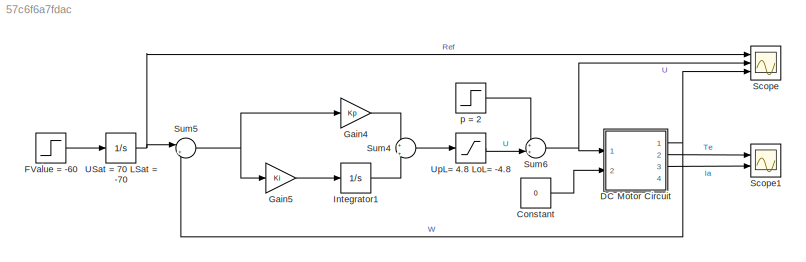
MODEL slx_57c6f6a7fdac
KIND model
CONFIG AbsTol = auto
CONFIG EnableMultiTasking = off
CONFIG FixedStep = auto
CONFIG MaxStep = auto
CONFIG MinStep = auto
CONFIG RelTol = 1e-3
CONFIG SampleTimeConstraint = Unconstrained
CONFIG SolverName = VariableStepAuto
CONFIG StartTime = 0.0
CONFIG StopTime = 6
BLOCK [Constant] Constant
  Value = 0
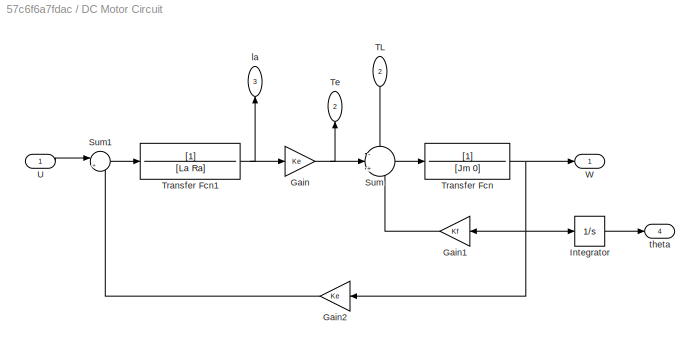
BLOCK [SubSystem] DC Motor Circuit
  Ports = [2, 4]
  RequestExecContextInheritance = off
BLOCK [Gain] DC Motor Circuit/Gain
  Gain = Ke
BLOCK [Gain] DC Motor Circuit/Gain1
  Gain = Kf
  NameLocation = top
BLOCK [Gain] DC Motor Circuit/Gain2
  Gain = Ke
  NameLocation = top
BLOCK [Integrator] DC Motor Circuit/Integrator
  Ports = [1, 1]
BLOCK [Sum] DC Motor Circuit/Sum
  Inputs = -|+|-
  Ports = [3, 1]
BLOCK [Sum] DC Motor Circuit/Sum1
  Inputs = |+-
  Ports = [2, 1]
BLOCK [Inport] DC Motor Circuit/TL
  NameLocation = left
  Port = 2
BLOCK [Outport] DC Motor Circuit/Te
  NameLocation = right
  Port = 2
BLOCK [TransferFcn] DC Motor Circuit/Transfer Fcn
  Denominator = [Jm 0]
BLOCK [TransferFcn] DC Motor Circuit/Transfer Fcn1
  Denominator = [La Ra]
BLOCK [Inport] DC Motor Circuit/U
BLOCK [Outport] DC Motor Circuit/W
BLOCK [Outport] DC Motor Circuit/la
  NameLocation = right
  Port = 3
BLOCK [Outport] DC Motor Circuit/theta
  Port = 4
BLOCK [Step] FValue = -60
  After = -60
  SampleTime = 0
BLOCK [Gain] Gain4
  Gain = Kp
BLOCK [Gain] Gain5
  Gain = Ki
BLOCK [Integrator] Integrator1
  Ports = [1, 1]
BLOCK [Scope] Scope
  Floating = off
  NumInputPorts = 3
  Ports = [3]
  ScopeSpecificationString = Simulink.scopes.TimeScopeBlockCfg('CurrentConfiguration', extmgr.ConfigurationSet(extmgr.Configuration('Core','General UI',true,'FigureColor',[1 1 1]),extmgr.Configuration('Core','Source UI',true),extmgr.Configuration('Sources','WiredSimulink',true,'DataLogging',true,'DataLoggingSaveFormat','StructureWithTime'),extmgr.Configuration('Visuals','Time Domain',true,'SerializedDisplays',{struct('MinYLim...<+1797ch>
BLOCK [Scope] Scope1
  Floating = off
  NumInputPorts = 2
  Ports = [2]
  ScopeSpecificationString = Simulink.scopes.TimeScopeBlockCfg('CurrentConfiguration', extmgr.ConfigurationSet(extmgr.Configuration('Core','General UI',true,'FigureColor',[1 1 1]),extmgr.Configuration('Core','Source UI',true),extmgr.Configuration('Sources','WiredSimulink',true,'DataLogging',true,'DataLoggingSaveFormat','StructureWithTime','DataLoggingVariableName','ScopeData1'),extmgr.Configuration('Visuals','Time Domain',tru...<+1668ch>
BLOCK [Sum] Sum4
  Inputs = +|+
  Ports = [2, 1]
BLOCK [Sum] Sum5
  Inputs = |+-
  Ports = [2, 1]
BLOCK [Sum] Sum6
  Inputs = ++|
  Ports = [2, 1]
BLOCK [Integrator] USat = 70 LSat = -70
  LimitOutput = on
  LowerSaturationLimit = -70
  Ports = [1, 1]
  UpperSaturationLimit = 70
BLOCK [Saturate] UpL= 4.8 LoL= -4.8
  LowerLimit = -4.8
  UpperLimit = 4.8
BLOCK [Step] p = 2
  After = 2
  SampleTime = 0
  Time = 5
LINE Constant:1 -> DC Motor Circuit:2
LINE DC Motor Circuit/Gain1:1 -> DC Motor Circuit/Sum:3
LINE DC Motor Circuit/Gain2:1 -> DC Motor Circuit/Sum1:2
NET DC Motor Circuit/Gain:1 -> DC Motor Circuit/Sum:2, DC Motor Circuit/Te:1
LINE DC Motor Circuit/Integrator:1 -> DC Motor Circuit/theta:1
LINE DC Motor Circuit/Sum1:1 -> DC Motor Circuit/Transfer Fcn1:1
LINE DC Motor Circuit/Sum:1 -> DC Motor Circuit/Transfer Fcn:1
LINE DC Motor Circuit/TL:1 -> DC Motor Circuit/Sum:1
NET DC Motor Circuit/Transfer Fcn1:1 -> DC Motor Circuit/Gain:1, DC Motor Circuit/la:1
NET DC Motor Circuit/Transfer Fcn:1 -> DC Motor Circuit/Gain1:1, DC Motor Circuit/Gain2:1, DC Motor Circuit/Integrator:1, DC Motor Circuit/W:1
LINE DC Motor Circuit/U:1 -> DC Motor Circuit/Sum1:1
NET DC Motor Circuit:1 -> Scope:3, Sum5:2
LINE DC Motor Circuit:2 -> Scope1:1
LINE DC Motor Circuit:3 -> Scope1:2
LINE FValue = -60:1 -> USat = 70 LSat = -70:1
LINE Gain4:1 -> Sum4:1
LINE Gain5:1 -> Integrator1:1
LINE Integrator1:1 -> Sum4:2
LINE Sum4:1 -> UpL= 4.8 LoL= -4.8:1
NET Sum5:1 -> Gain4:1, Gain5:1
NET Sum6:1 -> DC Motor Circuit:1, Scope:2
NET USat = 70 LSat = -70:1 -> Scope:1, Sum5:1
LINE UpL= 4.8 LoL= -4.8:1 -> Sum6:2
LINE p = 2:1 -> Sum6:1
note: NET lines group one-source signal fan-out (src -> all destinations, sorted); 1:1 wires keep LINE
